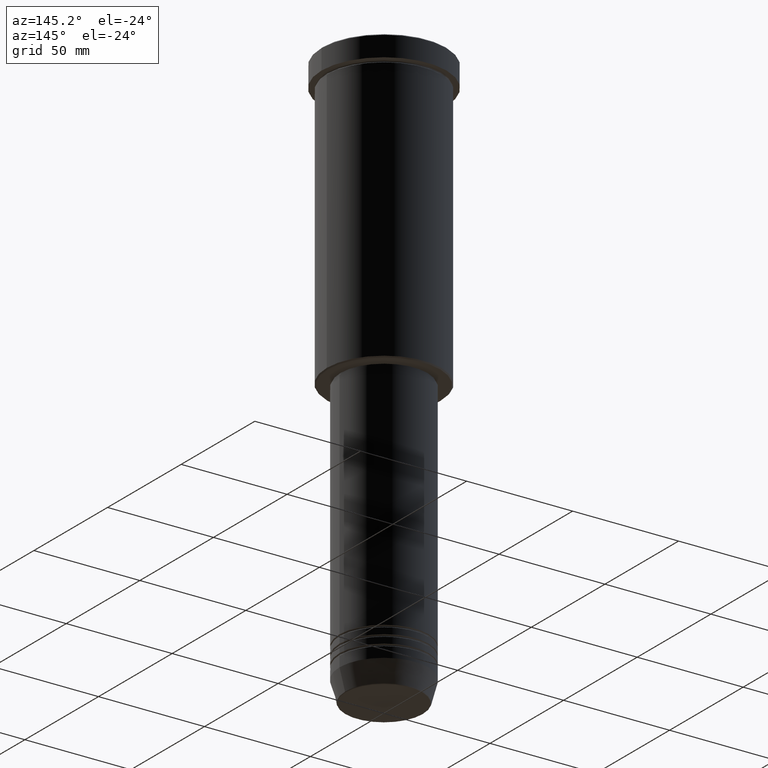
[diagram: clean part render]
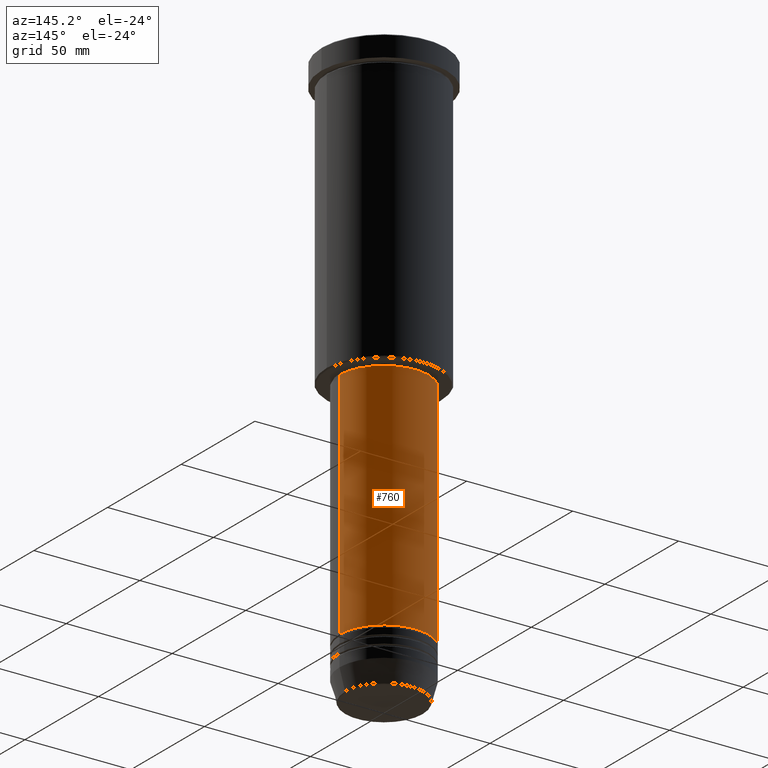
[diagram: same view with one face highlighted and labeled with its STEP entity id]
A machine part, auxiliary view. The second image highlights one B-rep face of the part: STEP entity #760.
In plain terms, the highlighted cylindrical surface (partial cylindrical patch) has radius 21 mm, axis along (-0, -0, 1).
Its self-contained STEP definition (entity closure, byte-faithful):
#10 = CARTESIAN_POINT ( 'NONE',  ( 0.000000000000000000, 0.000000000000000000, -246.9999999999999147 ) ) ;
#66 = AXIS2_PLACEMENT_3D ( 'NONE', #1000, #818, #1077 ) ;
#91 = FACE_OUTER_BOUND ( 'NONE', #339, .T. ) ;
#101 = DIRECTION ( 'NONE',  ( 1.000000000000000000, 0.000000000000000000, 0.000000000000000000 ) ) ;
#124 = ORIENTED_EDGE ( 'NONE', *, *, #1178, .T. ) ;
#184 = DIRECTION ( 'NONE',  ( -0.000000000000000000, -0.000000000000000000, 1.000000000000000000 ) ) ;
#225 = ORIENTED_EDGE ( 'NONE', *, *, #546, .F. ) ;
#269 = VECTOR ( 'NONE', #342, 1000.000000000000000 ) ;
#271 = AXIS2_PLACEMENT_3D ( 'NONE', #10, #374, #737 ) ;
#295 = VERTEX_POINT ( 'NONE', #865 ) ;
#339 = EDGE_LOOP ( 'NONE', ( #1080, #124, #225, #499 ) ) ;
#342 = DIRECTION ( 'NONE',  ( -0.000000000000000000, -0.000000000000000000, 1.000000000000000000 ) ) ;
#374 = DIRECTION ( 'NONE',  ( -0.000000000000000000, -0.000000000000000000, 1.000000000000000000 ) ) ;
#409 = AXIS2_PLACEMENT_3D ( 'NONE', #579, #1125, #101 ) ;
#417 = CIRCLE ( 'NONE', #271, 21.00000000000000000 ) ;
#499 = ORIENTED_EDGE ( 'NONE', *, *, #825, .F. ) ;
#539 = CARTESIAN_POINT ( 'NONE',  ( -20.99999999999999645, 2.571758278209441267E-15, 0.000000000000000000 ) ) ;
#546 = EDGE_CURVE ( 'NONE', #1140, #588, #722, .T. ) ;
#579 = CARTESIAN_POINT ( 'NONE',  ( 0.000000000000000000, 0.000000000000000000, -137.0000000000000000 ) ) ;
#588 = VERTEX_POINT ( 'NONE', #652 ) ;
#637 = LINE ( 'NONE', #539, #795 ) ;
#640 = LINE ( 'NONE', #803, #269 ) ;
#652 = CARTESIAN_POINT ( 'NONE',  ( -20.99999999999999645, 2.571758278209441267E-15, -137.0000000000000000 ) ) ;
#660 = CARTESIAN_POINT ( 'NONE',  ( 20.99999999999999645, 0.000000000000000000, -137.0000000000000000 ) ) ;
#722 = CIRCLE ( 'NONE', #409, 20.99999999999999645 ) ;
#737 = DIRECTION ( 'NONE',  ( 1.000000000000000000, 0.000000000000000000, 0.000000000000000000 ) ) ;
#760 = ADVANCED_FACE ( 'NONE', ( #91 ), #904, .T. ) ;
#795 = VECTOR ( 'NONE', #184, 1000.000000000000000 ) ;
#803 = CARTESIAN_POINT ( 'NONE',  ( 20.99999999999999645, 0.000000000000000000, 0.000000000000000000 ) ) ;
#818 = DIRECTION ( 'NONE',  ( -0.000000000000000000, -0.000000000000000000, 1.000000000000000000 ) ) ;
#825 = EDGE_CURVE ( 'NONE', #1056, #1140, #640, .T. ) ;
#865 = CARTESIAN_POINT ( 'NONE',  ( -21.00000000000000000, 2.571758278209441661E-15, -246.9999999999999147 ) ) ;
#898 = CARTESIAN_POINT ( 'NONE',  ( 21.00000000000000000, 0.000000000000000000, -246.9999999999999147 ) ) ;
#904 = CYLINDRICAL_SURFACE ( 'NONE', #66, 20.99999999999999645 ) ;
#965 = EDGE_CURVE ( 'NONE', #1056, #295, #417, .T. ) ;
#1000 = CARTESIAN_POINT ( 'NONE',  ( 0.000000000000000000, 0.000000000000000000, 0.000000000000000000 ) ) ;
#1056 = VERTEX_POINT ( 'NONE', #898 ) ;
#1077 = DIRECTION ( 'NONE',  ( 1.000000000000000000, 0.000000000000000000, 0.000000000000000000 ) ) ;
#1080 = ORIENTED_EDGE ( 'NONE', *, *, #965, .T. ) ;
#1125 = DIRECTION ( 'NONE',  ( -0.000000000000000000, -0.000000000000000000, 1.000000000000000000 ) ) ;
#1140 = VERTEX_POINT ( 'NONE', #660 ) ;
#1178 = EDGE_CURVE ( 'NONE', #295, #588, #637, .T. ) ;